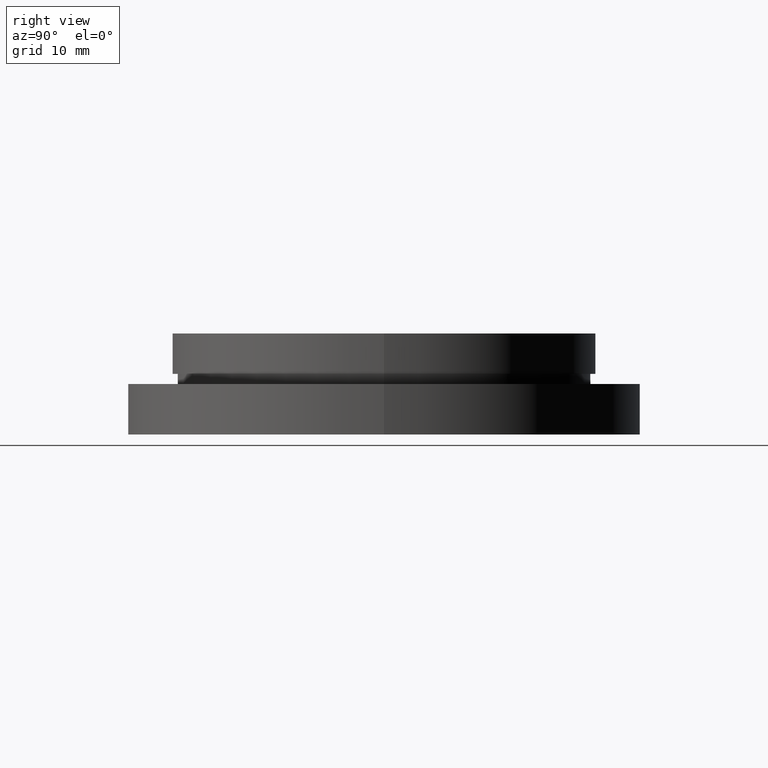
[diagram: clean part render]
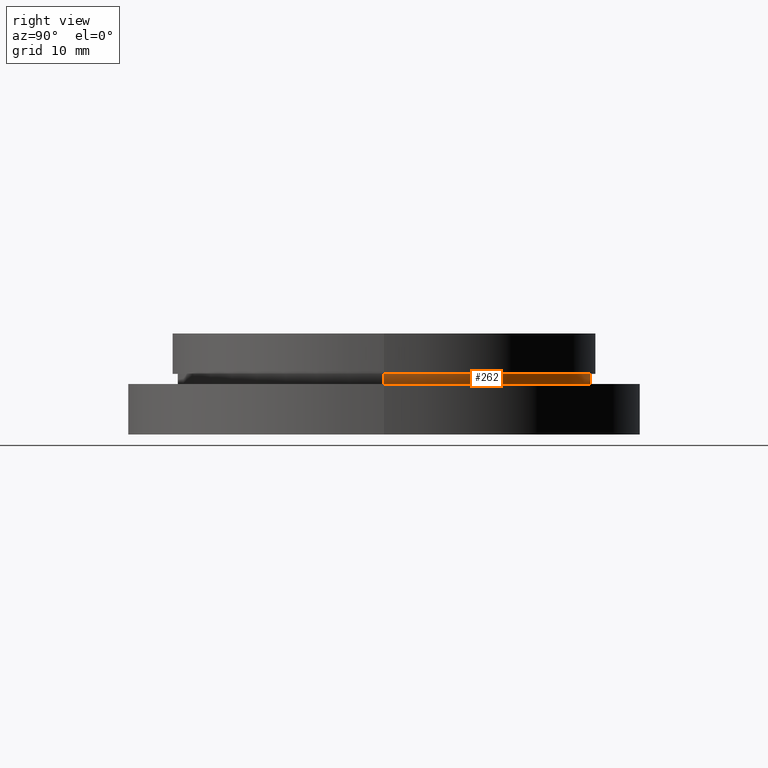
[diagram: same view with one face highlighted and labeled with its STEP entity id]
A machine part, right view. The second image highlights one B-rep face of the part: STEP entity #262.
In plain terms, the highlighted cylindrical surface (partial cylindrical patch) has radius 20.5 mm, axis along (-0, -0, -1).
Its self-contained STEP definition (entity closure, byte-faithful):
#13 = CARTESIAN_POINT ( 'NONE',  ( 20.50000000000000400, 2.510525938252074500E-015, -4.000000000000000000 ) ) ;
#48 = CARTESIAN_POINT ( 'NONE',  ( 20.50000000000000400, 2.510525938252074500E-015, -5.000000000000000900 ) ) ;
#49 = EDGE_LOOP ( 'NONE', ( #111, #421, #224, #405 ) ) ;
#81 = CYLINDRICAL_SURFACE ( 'NONE', #99, 20.50000000000000400 ) ;
#99 = AXIS2_PLACEMENT_3D ( 'NONE', #403, #433, #369 ) ;
#100 = EDGE_CURVE ( 'NONE', #235, #112, #181, .T. ) ;
#108 = LINE ( 'NONE', #355, #278 ) ;
#111 = ORIENTED_EDGE ( 'NONE', *, *, #100, .T. ) ;
#112 = VERTEX_POINT ( 'NONE', #13 ) ;
#113 = CARTESIAN_POINT ( 'NONE',  ( -20.50000000000000400, 0.0000000000000000000, -5.000000000000000900 ) ) ;
#128 = AXIS2_PLACEMENT_3D ( 'NONE', #216, #175, #384 ) ;
#156 = DIRECTION ( 'NONE',  ( -0.0000000000000000000, -0.0000000000000000000, -1.000000000000000000 ) ) ;
#175 = DIRECTION ( 'NONE',  ( -0.0000000000000000000, -0.0000000000000000000, -1.000000000000000000 ) ) ;
#181 = CIRCLE ( 'NONE', #128, 20.50000000000000400 ) ;
#185 = CARTESIAN_POINT ( 'NONE',  ( -20.50000000000000400, 0.0000000000000000000, -4.000000000000000000 ) ) ;
#190 = DIRECTION ( 'NONE',  ( -0.0000000000000000000, -0.0000000000000000000, -1.000000000000000000 ) ) ;
#201 = CIRCLE ( 'NONE', #270, 20.50000000000000400 ) ;
#203 = LINE ( 'NONE', #432, #397 ) ;
#209 = EDGE_CURVE ( 'NONE', #235, #372, #108, .T. ) ;
#213 = EDGE_CURVE ( 'NONE', #112, #344, #203, .T. ) ;
#216 = CARTESIAN_POINT ( 'NONE',  ( 0.0000000000000000000, 0.0000000000000000000, -4.000000000000000000 ) ) ;
#224 = ORIENTED_EDGE ( 'NONE', *, *, #310, .F. ) ;
#228 = CARTESIAN_POINT ( 'NONE',  ( 0.0000000000000000000, 0.0000000000000000000, -5.000000000000000900 ) ) ;
#235 = VERTEX_POINT ( 'NONE', #185 ) ;
#254 = DIRECTION ( 'NONE',  ( -0.0000000000000000000, -0.0000000000000000000, -1.000000000000000000 ) ) ;
#262 = ADVANCED_FACE ( 'NONE', ( #312 ), #81, .T. ) ;
#270 = AXIS2_PLACEMENT_3D ( 'NONE', #228, #190, #364 ) ;
#278 = VECTOR ( 'NONE', #254, 1000.000000000000000 ) ;
#310 = EDGE_CURVE ( 'NONE', #372, #344, #201, .T. ) ;
#312 = FACE_OUTER_BOUND ( 'NONE', #49, .T. ) ;
#344 = VERTEX_POINT ( 'NONE', #48 ) ;
#355 = CARTESIAN_POINT ( 'NONE',  ( -20.50000000000000400, 0.0000000000000000000, -19.14057971014493000 ) ) ;
#364 = DIRECTION ( 'NONE',  ( -1.000000000000000000, 0.0000000000000000000, 0.0000000000000000000 ) ) ;
#369 = DIRECTION ( 'NONE',  ( -1.000000000000000000, 0.0000000000000000000, 0.0000000000000000000 ) ) ;
#372 = VERTEX_POINT ( 'NONE', #113 ) ;
#384 = DIRECTION ( 'NONE',  ( -1.000000000000000000, 0.0000000000000000000, 0.0000000000000000000 ) ) ;
#397 = VECTOR ( 'NONE', #156, 1000.000000000000000 ) ;
#403 = CARTESIAN_POINT ( 'NONE',  ( 0.0000000000000000000, 0.0000000000000000000, -19.14057971014493000 ) ) ;
#405 = ORIENTED_EDGE ( 'NONE', *, *, #209, .F. ) ;
#421 = ORIENTED_EDGE ( 'NONE', *, *, #213, .T. ) ;
#432 = CARTESIAN_POINT ( 'NONE',  ( 20.50000000000000400, 2.510525938252074500E-015, -19.14057971014493000 ) ) ;
#433 = DIRECTION ( 'NONE',  ( -0.0000000000000000000, -0.0000000000000000000, -1.000000000000000000 ) ) ;